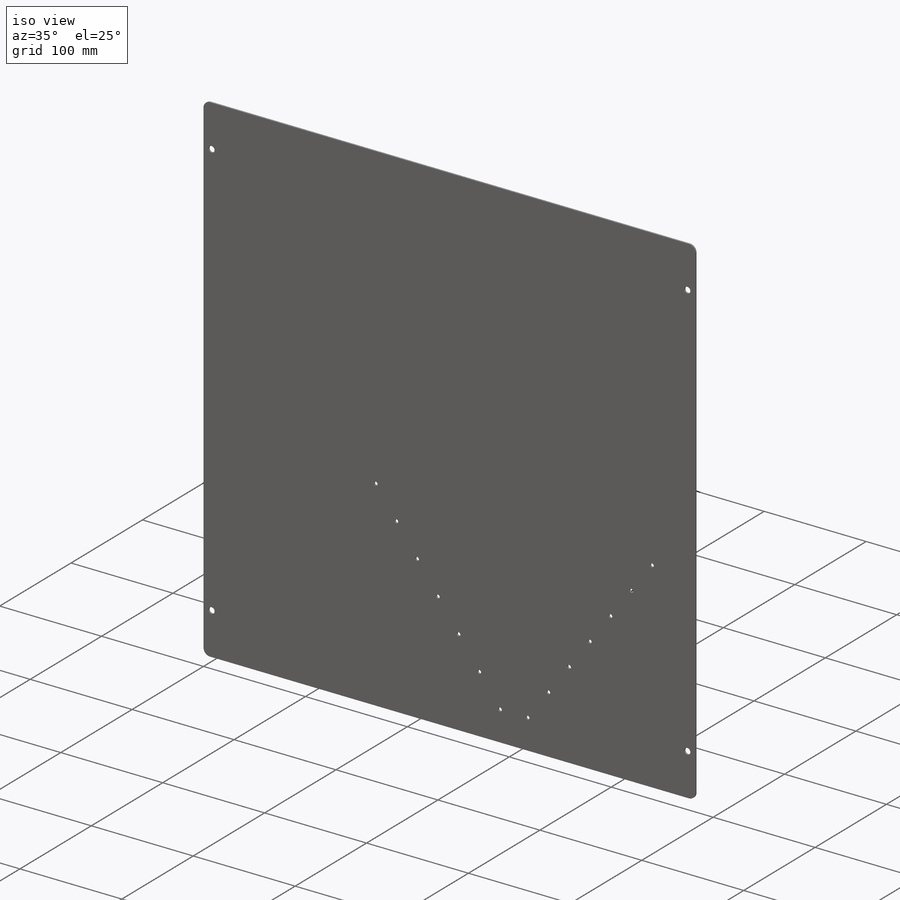
[diagram: iso view]
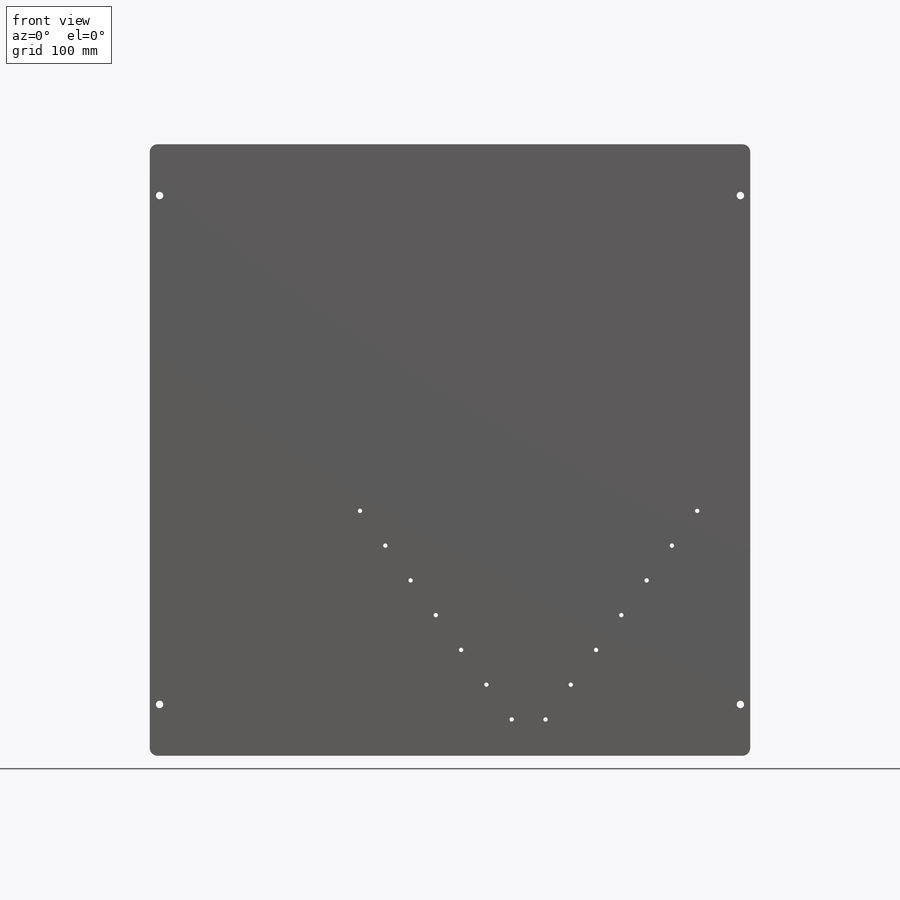
[diagram: front view]
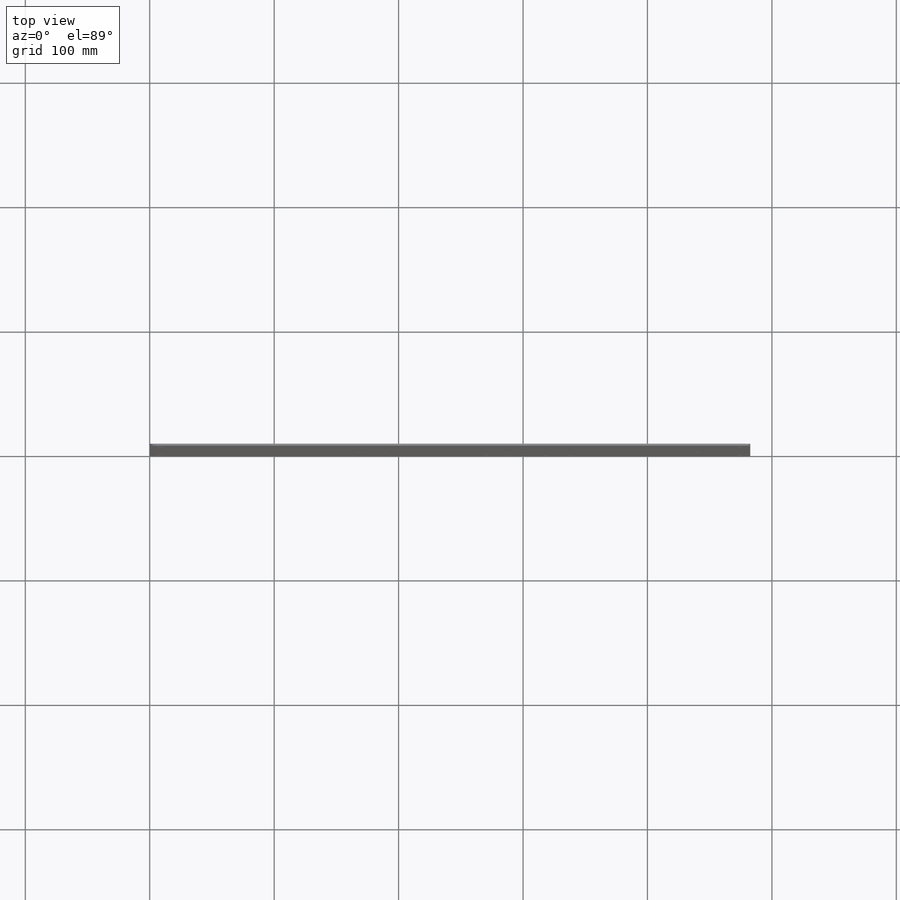
[diagram: top view]
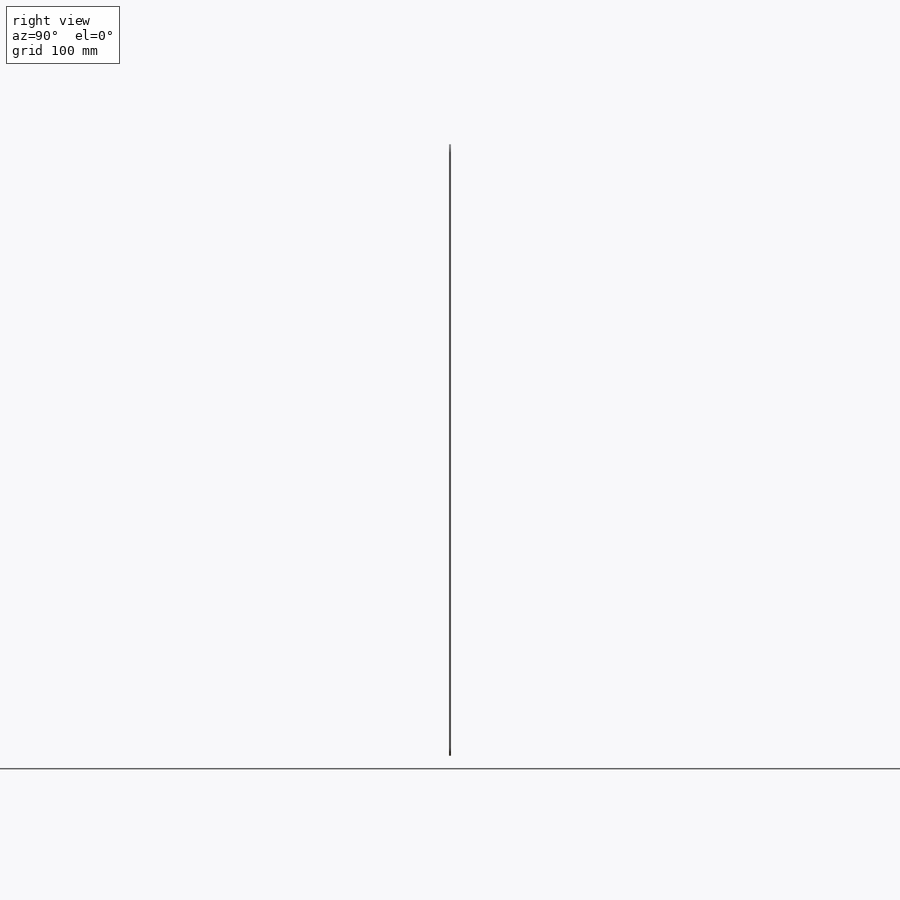
[diagram: right view]
SOLIDWORKS PART (.sldprt)
format: sldprt  version: not decoded by parser v0  size: 192,000 bytes
history: native  units: mm
features: sketch x5, hole x2, material x1, extrude x1 (+13 scaffold rows collapsed)
feature tree (22):
  scaffold x13  (default folders/planes/origin — collapsed)
  material  "Material <not specified>"
  sketch  "Sketch1"  dims[D3=6.35mm D1=482.6mm D2=491.49mm]
  extrude  "Boss-Extrude1"  Depth=1.5875mm
  hole  "A (0.234) Diameter Hole1"  Diameter=5.9436mm Depth=6.35mm
  sketch  "Sketch6"
  sketch  "Sketch7"  dims[Hole Dia.=5.9436mm Hole Depth=6.35mm Drill Angle=118.0deg]
  hole  "#29 (0.136) Diameter Hole1"  Diameter=3.4544mm Depth=19.05mm
  sketch  "Sketch8"
  sketch  "Sketch9"  dims[Hole Dia.=3.4544mm Hole Depth=19.05mm Drill Angle=118.0deg]
decode coverage: 6 of 8 modeling features carry decoded parameters
note: suppression state not decoded; provenance and decode notes live in map.json
